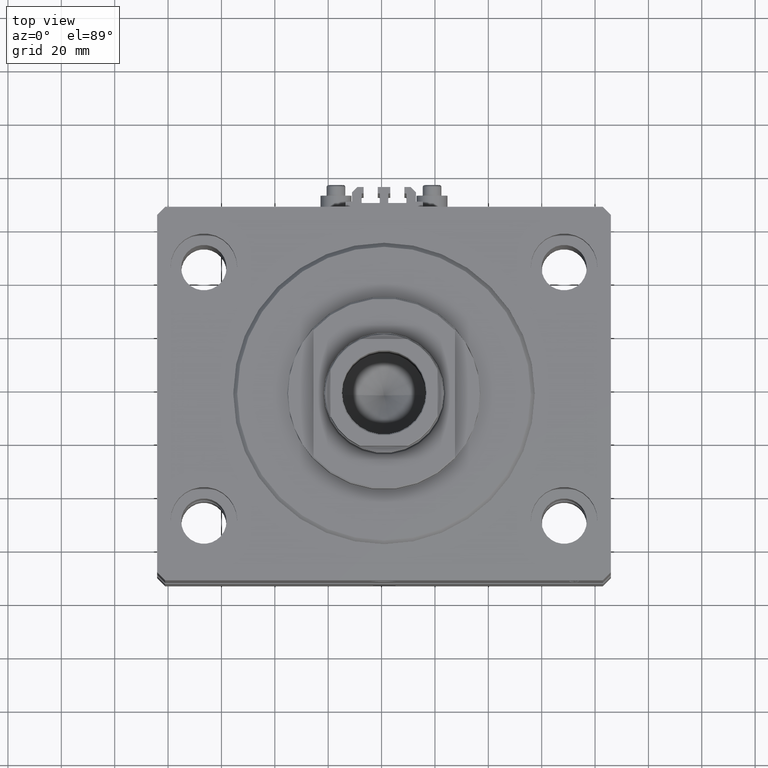
[diagram: clean part render]
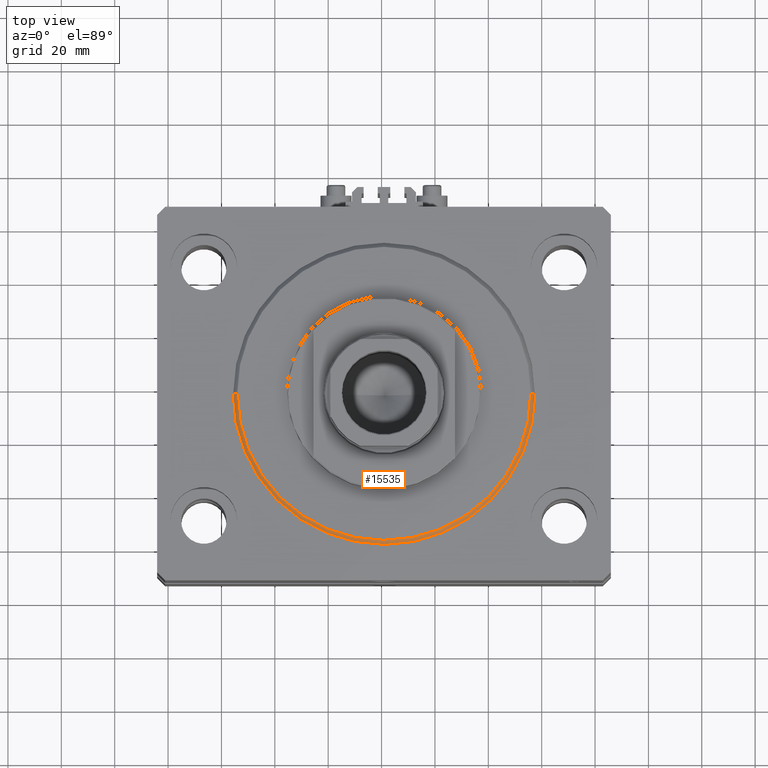
[diagram: same view with one face highlighted and labeled with its STEP entity id]
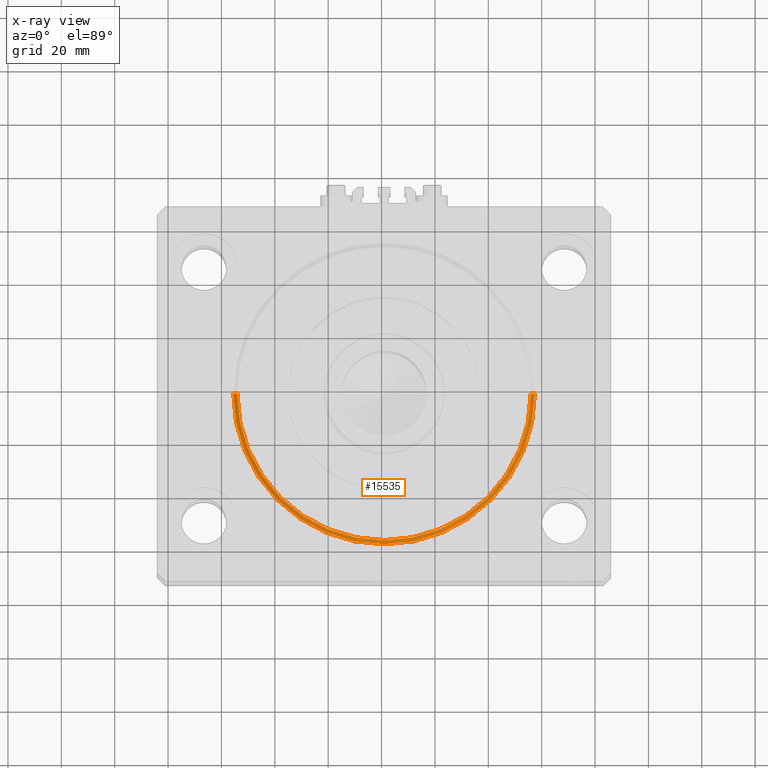
[diagram: x-ray of the same camera — body ghosted, the highlighted face saturated]
A machine part, top view. The second image highlights one B-rep face of the part: STEP entity #15535.
The next image is the same camera in x-ray: the body ghosted, the highlighted face saturated — about 0% of this face is hidden behind the body in this view.
In plain terms, the highlighted conical surface has half-angle 45 deg.
Its self-contained STEP definition (entity closure, byte-faithful):
#657 = CARTESIAN_POINT ( 'NONE',  ( 55.00000000000002132, 0.000000000000000000, 0.000000000000000000 ) ) ;
#1956 = ORIENTED_EDGE ( 'NONE', *, *, #29990, .T. ) ;
#4505 = VECTOR ( 'NONE', #19820, 1000.000000000000000 ) ;
#5877 = VERTEX_POINT ( 'NONE', #26042 ) ;
#8211 = VECTOR ( 'NONE', #46572, 1000.000000000000000 ) ;
#9485 = VERTEX_POINT ( 'NONE', #47060 ) ;
#9585 = ORIENTED_EDGE ( 'NONE', *, *, #24426, .F. ) ;
#12006 = AXIS2_PLACEMENT_3D ( 'NONE', #33193, #29469, #36000 ) ;
#13188 = CARTESIAN_POINT ( 'NONE',  ( 0.000000000000000000, 0.000000000000000000, 0.000000000000000000 ) ) ;
#13386 = CARTESIAN_POINT ( 'NONE',  ( 56.50000000000000711, 0.000000000000000000, 1.499999999999994449 ) ) ;
#14420 = EDGE_CURVE ( 'NONE', #31445, #5877, #47330, .T. ) ;
#15535 = ADVANCED_FACE ( 'NONE', ( #24754 ), #20476, .T. ) ;
#17334 = DIRECTION ( 'NONE',  ( -0.000000000000000000, -0.000000000000000000, 1.000000000000000000 ) ) ;
#19820 = DIRECTION ( 'NONE',  ( -0.7071067811865459074, 8.659560562354911904E-17, 0.7071067811865491270 ) ) ;
#20476 = CONICAL_SURFACE ( 'NONE', #37895, 56.50000000000000711, 0.7853981633974460586 ) ;
#23163 = ORIENTED_EDGE ( 'NONE', *, *, #48388, .F. ) ;
#24029 = LINE ( 'NONE', #38182, #4505 ) ;
#24426 = EDGE_CURVE ( 'NONE', #9485, #32462, #36502, .T. ) ;
#24754 = FACE_OUTER_BOUND ( 'NONE', #42870, .T. ) ;
#25999 = AXIS2_PLACEMENT_3D ( 'NONE', #13188, #32256, #35975 ) ;
#26042 = CARTESIAN_POINT ( 'NONE',  ( -55.00000000000002132, 6.827405905246496343E-15, 0.000000000000000000 ) ) ;
#29469 = DIRECTION ( 'NONE',  ( -0.000000000000000000, -0.000000000000000000, 1.000000000000000000 ) ) ;
#29990 = EDGE_CURVE ( 'NONE', #31445, #32462, #47053, .T. ) ;
#31139 = CARTESIAN_POINT ( 'NONE',  ( 56.50000000000000711, 6.919254415182546126E-15, 1.499999999999994449 ) ) ;
#31445 = VERTEX_POINT ( 'NONE', #657 ) ;
#31956 = DIRECTION ( 'NONE',  ( 1.000000000000000000, 0.000000000000000000, 0.000000000000000000 ) ) ;
#32256 = DIRECTION ( 'NONE',  ( -0.000000000000000000, -0.000000000000000000, -1.000000000000000000 ) ) ;
#32462 = VERTEX_POINT ( 'NONE', #31139 ) ;
#33193 = CARTESIAN_POINT ( 'NONE',  ( 0.000000000000000000, 0.000000000000000000, 1.499999999999994449 ) ) ;
#35975 = DIRECTION ( 'NONE',  ( 1.000000000000000000, 0.000000000000000000, 0.000000000000000000 ) ) ;
#36000 = DIRECTION ( 'NONE',  ( 1.000000000000000000, 0.000000000000000000, 0.000000000000000000 ) ) ;
#36502 = CIRCLE ( 'NONE', #12006, 56.50000000000000711 ) ;
#37895 = AXIS2_PLACEMENT_3D ( 'NONE', #47764, #17334, #31956 ) ;
#38182 = CARTESIAN_POINT ( 'NONE',  ( -56.50000000000000711, 6.919254415182546126E-15, 1.499999999999994449 ) ) ;
#42870 = EDGE_LOOP ( 'NONE', ( #23163, #44487, #1956, #9585 ) ) ;
#44487 = ORIENTED_EDGE ( 'NONE', *, *, #14420, .F. ) ;
#46572 = DIRECTION ( 'NONE',  ( 0.7071067811865459074, 0.000000000000000000, 0.7071067811865491270 ) ) ;
#47053 = LINE ( 'NONE', #13386, #8211 ) ;
#47060 = CARTESIAN_POINT ( 'NONE',  ( -56.50000000000000711, 0.000000000000000000, 1.499999999999994449 ) ) ;
#47330 = CIRCLE ( 'NONE', #25999, 55.00000000000002132 ) ;
#47764 = CARTESIAN_POINT ( 'NONE',  ( 0.000000000000000000, 0.000000000000000000, 1.499999999999994449 ) ) ;
#48388 = EDGE_CURVE ( 'NONE', #5877, #9485, #24029, .T. ) ;